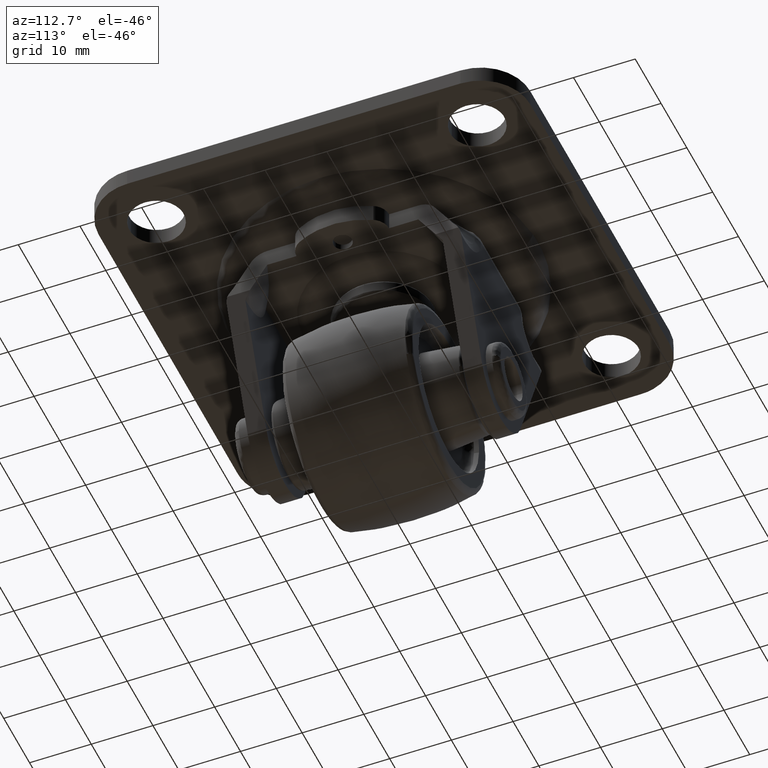
[diagram: clean part render]
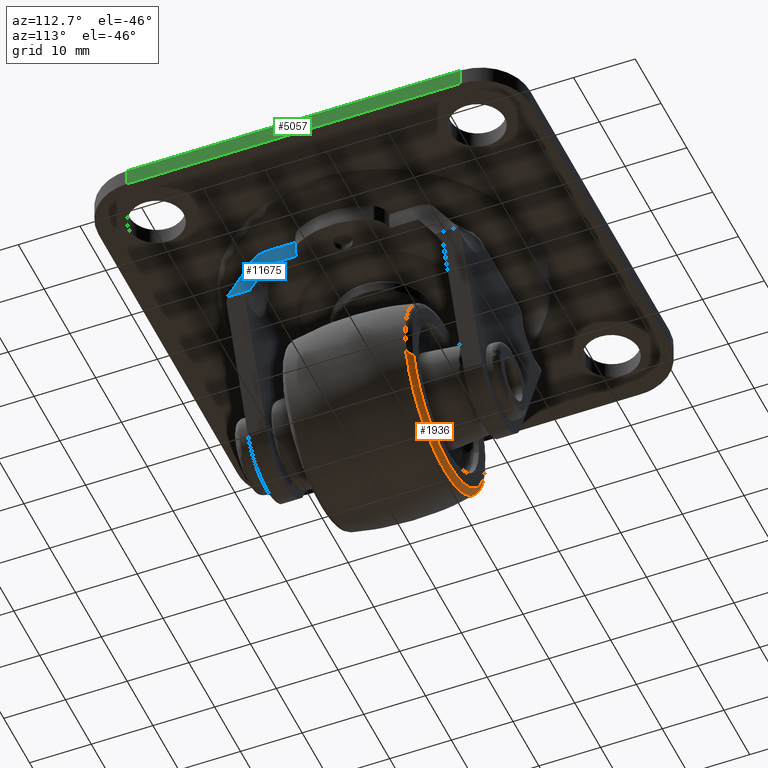
[diagram: same view with three faces highlighted in distinct colors, each labeled with its STEP entity id]
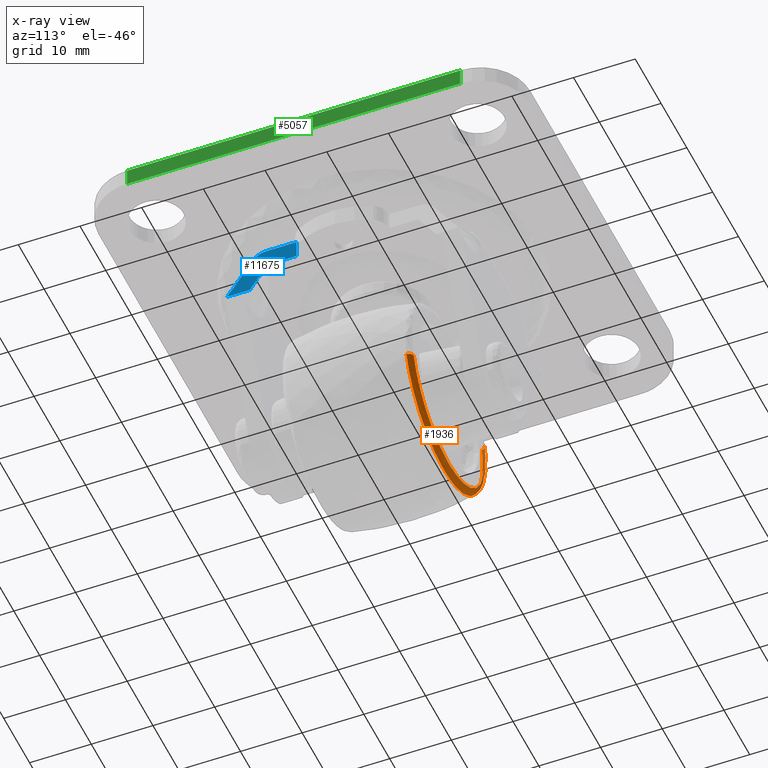
[diagram: x-ray of the same camera — body ghosted, the three highlighted faces saturated]
A machine part, auxiliary view with three faces highlighted in distinct colors.
The next image is the same camera in x-ray (body ghosted, the three faces saturated) — at least one of them is partly hidden behind the body in this view.
Their STEP definitions:

[orange] entity #1936 — the highlighted face is a freeform B-spline surface patch.
#1737=CARTESIAN_POINT('',(13.557302839998380,10.499997727166280,-3.764533742465678));
#1738=VERTEX_POINT('',#1737);
#1756=CARTESIAN_POINT('',(-13.750414091265590,10.499997727166280,2.982990616968395));
#1757=VERTEX_POINT('',#1756);
#1771=CARTESIAN_POINT('',(-14.709139005765300,9.693876889837995,3.190974999609361));
#1772=VERTEX_POINT('',#1771);
#1773=CARTESIAN_POINT('',(-13.750414091265595,10.499997727166283,2.982990616968394));
#1774=CARTESIAN_POINT('',(-14.553447576608715,10.499997788817412,3.157199520415097));
#1775=CARTESIAN_POINT('',(-14.709139005765302,9.693876889837995,3.190974999609360));
#1783=(BOUNDED_CURVE()B_SPLINE_CURVE(2,(#1773,#1774,#1775),.UNSPECIFIED.,.F.,.U.)B_SPLINE_CURVE_WITH_KNOTS((3,3),(-1.695300730183712,-0.298155514343116),.UNSPECIFIED.)CURVE()GEOMETRIC_REPRESENTATION_ITEM()RATIONAL_B_SPLINE_CURVE((0.892481596009499,0.690282653489372,0.894384571771421))REPRESENTATION_ITEM(''));
#1784=EDGE_CURVE('',#1757,#1772,#1783,.T.);
#1801=CARTESIAN_POINT('',(14.502563924880180,9.693872522452987,-4.027009509901783));
#1802=VERTEX_POINT('',#1801);
#1818=CARTESIAN_POINT('',(13.557302839998378,10.499997727166281,-3.764533742465678));
#1819=CARTESIAN_POINT('',(14.349062042185791,10.499997794003747,-3.984385810345354));
#1820=CARTESIAN_POINT('',(14.502563924880180,9.693872522452988,-4.027009509901783));
#1828=(BOUNDED_CURVE()B_SPLINE_CURVE(2,(#1818,#1819,#1820),.UNSPECIFIED.,.F.,.U.)B_SPLINE_CURVE_WITH_KNOTS((3,3),(-1.695300737120839,-0.298150679640712),.UNSPECIFIED.)CURVE()GEOMETRIC_REPRESENTATION_ITEM()RATIONAL_B_SPLINE_CURVE((0.872405939164935,0.674754613030236,0.874267487833418))REPRESENTATION_ITEM(''));
#1829=EDGE_CURVE('',#1738,#1802,#1828,.T.);
#1834=CARTESIAN_POINT('',(-13.689120327901433,10.498028916428241,2.969693637836777));
#1835=CARTESIAN_POINT('',(-16.658817965738194,10.498028916428240,-10.719426690064655));
#1836=CARTESIAN_POINT('',(-2.969697637836767,10.498028916428241,-13.689124327901421));
#1837=CARTESIAN_POINT('',(9.957670233032593,10.498028916428241,-16.493568507657788));
#1838=CARTESIAN_POINT('',(13.496869891193597,10.498028916428243,-3.747752998015889));
#1839=CARTESIAN_POINT('',(-14.598721045664639,10.556520861560248,3.167021080229865));
#1840=CARTESIAN_POINT('',(-17.765746125894498,10.556520861560250,-11.431699965434774));
#1841=CARTESIAN_POINT('',(-3.167025080229855,10.556520861560248,-14.598725045664628));
#1842=CARTESIAN_POINT('',(10.619327357395406,10.556520861560248,-17.589516074431728));
#1843=CARTESIAN_POINT('',(14.393696147849663,10.556520861560248,-3.996779604323338));
#1844=CARTESIAN_POINT('',(-14.719117706189248,9.632099230540236,3.193139754753795));
#1845=CARTESIAN_POINT('',(-17.912261460943022,9.632099230540238,-11.525977951435449));
#1846=CARTESIAN_POINT('',(-3.193143754753784,9.632099230540236,-14.719121706189236));
#1847=CARTESIAN_POINT('',(10.706905683390454,9.632099230540236,-17.734577995088653));
#1848=CARTESIAN_POINT('',(14.512401953884758,9.632099230540234,-4.029741288714839));
#1856=(BOUNDED_SURFACE()B_SPLINE_SURFACE(2,2,((#1834,#1839,#1844),(#1835,#1840,#1845),(#1836,#1841,#1846),(#1837,#1842,#1847),(#1838,#1843,#1848)),.UNSPECIFIED.,.F.,.F.,.U.)B_SPLINE_SURFACE_WITH_KNOTS((3,2,3),(3,3),(0.0,24.954699874211581,48.911211753454701),(0.0,1.575739697641357),.UNSPECIFIED.)GEOMETRIC_REPRESENTATION_ITEM()RATIONAL_B_SPLINE_SURFACE(((0.913695217595119,0.668973279630351,0.915789709842082),(0.646080084299226,0.473035542459226,0.647561113970197),(0.913695217595119,0.668973279630351,0.915789709842082),(0.656784689631062,0.480873051946071,0.658290257805072),(0.893142375357994,0.653925261415609,0.895189753679121)))REPRESENTATION_ITEM('')SURFACE());
#1857=CARTESIAN_POINT('',(0.0,10.499997727166280,-14.070261438793850));
#1858=VERTEX_POINT('',#1857);
#1859=CARTESIAN_POINT('',(0.0,10.499997727166280,-14.070261438793850));
#1860=CARTESIAN_POINT('',(10.695655583825443,10.499997727166278,-14.070261438793848));
#1861=CARTESIAN_POINT('',(13.557302839998371,10.499997727166281,-3.764533742465678));
#1869=(BOUNDED_CURVE()B_SPLINE_CURVE(2,(#1859,#1860,#1861),.UNSPECIFIED.,.F.,.U.)B_SPLINE_CURVE_WITH_KNOTS((3,3),(0.0,0.204398610791363),.UNSPECIFIED.)CURVE()GEOMETRIC_REPRESENTATION_ITEM()RATIONAL_B_SPLINE_CURVE((1.0,0.760532131857279,0.912639460334889))REPRESENTATION_ITEM(''));
#1870=EDGE_CURVE('',#1858,#1738,#1869,.T.);
#1871=ORIENTED_EDGE('',*,*,#1870,.T.);
#1872=ORIENTED_EDGE('',*,*,#1829,.T.);
#1873=CARTESIAN_POINT('',(0.0,9.693875231802339,-15.051287271490139));
#1874=VERTEX_POINT('',#1873);
#1875=CARTESIAN_POINT('',(0.0,9.693875231802339,-15.051287271490139));
#1876=CARTESIAN_POINT('',(11.441392369813409,9.693875231802339,-15.051287271490137));
#1877=CARTESIAN_POINT('',(14.502563924880178,9.693872522452988,-4.027009509901782));
#1885=(BOUNDED_CURVE()B_SPLINE_CURVE(2,(#1875,#1876,#1877),.UNSPECIFIED.,.F.,.U.)B_SPLINE_CURVE_WITH_KNOTS((3,3),(0.0,0.204398605127965),.UNSPECIFIED.)CURVE()GEOMETRIC_REPRESENTATION_ITEM()RATIONAL_B_SPLINE_CURVE((1.0,0.760532138492362,0.912639451905827))REPRESENTATION_ITEM(''));
#1886=EDGE_CURVE('',#1874,#1802,#1885,.T.);
#1887=ORIENTED_EDGE('',*,*,#1886,.F.);
#1888=CARTESIAN_POINT('',(-14.950616506431530,9.693877446149049,1.737862802311950));
#1889=VERTEX_POINT('',#1888);
#1890=CARTESIAN_POINT('',(-14.950616506431532,9.693877446149049,1.737862802311951));
#1891=CARTESIAN_POINT('',(-15.051282848002003,9.693877389038839,0.871844937167030));
#1892=CARTESIAN_POINT('',(-15.051282860592030,9.693877324905573,-0.000004047762983));
#1893=CARTESIAN_POINT('',(-15.051283077941774,9.693876217732218,-15.051287293988302));
#1894=CARTESIAN_POINT('',(0.0,9.693875231802339,-15.051287271490139));
#1902=(BOUNDED_CURVE()B_SPLINE_CURVE(2,(#1890,#1891,#1892,#1893,#1894),.UNSPECIFIED.,.F.,.U.)B_SPLINE_CURVE_WITH_KNOTS((3,2,3),(0.730000203322789,0.750000000000000,1.0),.UNSPECIFIED.)CURVE()GEOMETRIC_REPRESENTATION_ITEM()RATIONAL_B_SPLINE_CURVE((0.956886518379587,0.976568780702388,1.0,0.707106781186548,1.0))REPRESENTATION_ITEM(''));
#1903=EDGE_CURVE('',#1889,#1874,#1902,.T.);
#1904=ORIENTED_EDGE('',*,*,#1903,.F.);
#1905=CARTESIAN_POINT('',(-14.709139005765302,9.693876889837995,3.190974999609361));
#1906=CARTESIAN_POINT('',(-14.865473695791598,9.693877176754210,2.470334221446279));
#1907=CARTESIAN_POINT('',(-14.950616506431532,9.693877446149049,1.737862802311951));
#1915=(BOUNDED_CURVE()B_SPLINE_CURVE(2,(#1905,#1906,#1907),.UNSPECIFIED.,.F.,.U.)B_SPLINE_CURVE_WITH_KNOTS((3,3),(0.713703259680341,0.730000203322789),.UNSPECIFIED.)CURVE()GEOMETRIC_REPRESENTATION_ITEM()RATIONAL_B_SPLINE_CURVE((0.927299388110303,0.940848319341491,0.956886518379587))REPRESENTATION_ITEM(''));
#1916=EDGE_CURVE('',#1772,#1889,#1915,.T.);
#1917=ORIENTED_EDGE('',*,*,#1916,.F.);
#1918=ORIENTED_EDGE('',*,*,#1784,.F.);
#1919=CARTESIAN_POINT('',(-13.750414091265597,10.499997727166283,2.982990616968394));
#1920=CARTESIAN_POINT('',(-14.070257438793856,10.499997727166278,1.508640467757293));
#1921=CARTESIAN_POINT('',(-14.070257438793860,10.499997727166280,-0.000003999999988));
#1922=CARTESIAN_POINT('',(-14.070257438793858,10.499997727166280,-14.070261438793851));
#1923=CARTESIAN_POINT('',(0.0,10.499997727166280,-14.070261438793850));
#1931=(BOUNDED_CURVE()B_SPLINE_CURVE(2,(#1919,#1920,#1921,#1922,#1923),.UNSPECIFIED.,.F.,.U.)B_SPLINE_CURVE_WITH_KNOTS((3,2,3),(0.713703258524176,0.750000000000000,1.0),.UNSPECIFIED.)CURVE()GEOMETRIC_REPRESENTATION_ITEM()RATIONAL_B_SPLINE_CURVE((0.927299386187882,0.957475722226825,1.0,0.707106781186548,1.0))REPRESENTATION_ITEM(''));
#1932=EDGE_CURVE('',#1757,#1858,#1931,.T.);
#1933=ORIENTED_EDGE('',*,*,#1932,.T.);
#1934=EDGE_LOOP('',(#1871,#1872,#1887,#1904,#1917,#1918,#1933));
#1935=FACE_OUTER_BOUND('',#1934,.T.);
#1936=ADVANCED_FACE('',(#1935),#1856,.T.);

[blue] entity #11675 — the highlighted face is a freeform B-spline surface patch.
#8256=CARTESIAN_POINT('',(15.999995999999999,-7.485857864329890,22.500000000000000));
#8257=VERTEX_POINT('',#8256);
#8278=CARTESIAN_POINT('',(15.999995999999999,-7.485857864329890,25.500000000000000));
#8279=VERTEX_POINT('',#8278);
#8293=CARTESIAN_POINT('',(15.999995999999999,-7.485857864329890,25.500000000000000));
#8294=CARTESIAN_POINT('',(15.999995999999999,-7.485857864329890,22.500000000000000));
#8295=QUASI_UNIFORM_CURVE('',1,(#8293,#8294),.UNSPECIFIED.,.F.,.U.);
#8296=EDGE_CURVE('',#8279,#8257,#8295,.T.);
#9420=CARTESIAN_POINT('',(16.0,-18.385325102840500,18.795700436965351));
#9421=VERTEX_POINT('',#9420);
#9422=CARTESIAN_POINT('',(16.0,-18.739078620643149,18.200000999999901));
#9423=VERTEX_POINT('',#9422);
#9424=CARTESIAN_POINT('',(16.0,-18.385325102840479,18.795700436965340));
#9425=CARTESIAN_POINT('',(15.999999999999996,-18.596826165207091,18.518412210389858));
#9426=CARTESIAN_POINT('',(16.0,-18.739078620643170,18.200000999999911));
#9434=(BOUNDED_CURVE()B_SPLINE_CURVE(2,(#9424,#9425,#9426),.UNSPECIFIED.,.F.,.U.)CURVE()GEOMETRIC_REPRESENTATION_ITEM()QUASI_UNIFORM_CURVE()RATIONAL_B_SPLINE_CURVE((1.0,0.993310970517867,1.0))REPRESENTATION_ITEM(''));
#9435=EDGE_CURVE('',#9421,#9423,#9434,.T.);
#9864=CARTESIAN_POINT('',(16.0,-12.238953463919000,25.500000000000000));
#9865=VERTEX_POINT('',#9864);
#9882=CARTESIAN_POINT('',(16.0,-15.025085772157750,23.837753183212200));
#9883=VERTEX_POINT('',#9882);
#9897=CARTESIAN_POINT('',(16.0,-12.238953463919019,25.500000000000000));
#9898=CARTESIAN_POINT('',(16.0,-12.382342343990150,25.500000000000000));
#9899=CARTESIAN_POINT('',(16.0,-12.524105831087910,25.490424472670188));
#9900=CARTESIAN_POINT('',(16.0,-12.804516350614071,25.452913736784829));
#9901=CARTESIAN_POINT('',(16.0,-12.943163006308080,25.424976308808620));
#9902=CARTESIAN_POINT('',(16.0,-13.148760417193129,25.369092848939701));
#9903=CARTESIAN_POINT('',(16.0,-13.216896102032489,25.348127483517839));
#9904=CARTESIAN_POINT('',(16.0,-13.352350484612820,25.301383712125279));
#9905=CARTESIAN_POINT('',(16.0,-13.419073261586989,25.275804014799540));
#9906=CARTESIAN_POINT('',(16.0,-13.615493472942600,25.192881568646559));
#9907=CARTESIAN_POINT('',(16.0,-13.741812511716020,25.129263634783669));
#9908=CARTESIAN_POINT('',(16.0,-13.985251264632881,24.985456420963839));
#9909=CARTESIAN_POINT('',(16.0,-14.102373098315081,24.905270959070901));
#9910=CARTESIAN_POINT('',(16.0,-14.270788245522450,24.771901156285530));
#9911=CARTESIAN_POINT('',(16.0,-14.325338569561479,24.725531491564471));
#9912=CARTESIAN_POINT('',(16.0,-14.430433803374800,24.629761233977511));
#9913=CARTESIAN_POINT('',(16.0,-14.481120186562620,24.580249620953271));
#9914=CARTESIAN_POINT('',(16.0,-14.627641912158110,24.426875769631970));
#9915=CARTESIAN_POINT('',(16.0,-14.717967671872231,24.318198848859279));
#9916=CARTESIAN_POINT('',(16.0,-14.842114877940841,24.145272480939450));
#9917=CARTESIAN_POINT('',(16.0,-14.881600285212990,24.085972623423611));
#9918=CARTESIAN_POINT('',(16.0,-14.956635556061141,23.963933738073660));
#9919=CARTESIAN_POINT('',(16.0,-14.992028580475990,23.901432080516631));
#9920=CARTESIAN_POINT('',(16.0,-15.025085772157800,23.837753183212200));
#9921=B_SPLINE_CURVE_WITH_KNOTS('',3,(#9897,#9898,#9899,#9900,#9901,#9902,#9903,#9904,#9905,#9906,#9907,#9908,#9909,#9910,#9911,#9912,#9913,#9914,#9915,#9916,#9917,#9918,#9919,#9920),.UNSPECIFIED.,.F.,.U.,(4,2,2,2,2,2,2,2,2,2,2,4),(0.0,0.124999999999998,0.249999999999996,0.312499999999995,0.374999999999994,0.499999999999993,0.624999999999992,0.687499999999992,0.749999999999992,0.874999999999995,0.937499999999998,1.0),.UNSPECIFIED.);
#9922=EDGE_CURVE('',#9865,#9883,#9921,.T.);
#10722=CARTESIAN_POINT('',(16.0,-12.238953463919000,22.500000000000000));
#10723=VERTEX_POINT('',#10722);
#10737=CARTESIAN_POINT('',(16.0,-15.057909817492151,18.200000999999901));
#10738=VERTEX_POINT('',#10737);
#10739=CARTESIAN_POINT('',(16.0,-15.057909817492151,18.200000999999901));
#10740=CARTESIAN_POINT('',(16.0,-14.539011363621750,18.884037780579781));
#10741=CARTESIAN_POINT('',(16.0,-14.043538153451919,19.583650714110991));
#10742=CARTESIAN_POINT('',(16.0,-13.102454521778510,21.016031857283831));
#10743=CARTESIAN_POINT('',(16.0,-12.656818164533970,21.748782821466939));
#10744=CARTESIAN_POINT('',(16.0,-12.238953463919000,22.500000000000000));
#10745=B_SPLINE_CURVE_WITH_KNOTS('',3,(#10739,#10740,#10741,#10742,#10743,#10744),.UNSPECIFIED.,.F.,.U.,(4,2,4),(0.0,0.500000000000000,1.0),.UNSPECIFIED.);
#10746=EDGE_CURVE('',#10738,#10723,#10745,.T.);
#11190=CARTESIAN_POINT('',(16.0,-17.724026998837800,19.653937310199751));
#11191=VERTEX_POINT('',#11190);
#11206=CARTESIAN_POINT('',(16.0,-17.724026998837790,19.653937310199751));
#11207=CARTESIAN_POINT('',(15.999999999999998,-18.056779561727094,19.226439693899646));
#11208=CARTESIAN_POINT('',(16.0,-18.385325102840479,18.795700436965319));
#11216=(BOUNDED_CURVE()B_SPLINE_CURVE(2,(#11206,#11207,#11208),.UNSPECIFIED.,.F.,.U.)CURVE()GEOMETRIC_REPRESENTATION_ITEM()QUASI_UNIFORM_CURVE()RATIONAL_B_SPLINE_CURVE((1.0,0.999987985730817,1.0))REPRESENTATION_ITEM(''));
#11217=EDGE_CURVE('',#11191,#9421,#11216,.T.);
#11245=CARTESIAN_POINT('',(16.0,-17.724026998837800,19.653937310199751));
#11246=CARTESIAN_POINT('',(16.0,-17.210701199542370,20.313423006353961));
#11247=CARTESIAN_POINT('',(16.0,-16.727976104443751,20.991132073660680));
#11248=CARTESIAN_POINT('',(16.0,-15.826558020319981,22.384682691342149));
#11249=CARTESIAN_POINT('',(16.0,-15.407814138327280,23.100493933870691));
#11250=CARTESIAN_POINT('',(16.0,-15.025085772157750,23.837753183212200));
#11251=B_SPLINE_CURVE_WITH_KNOTS('',3,(#11245,#11246,#11247,#11248,#11249,#11250),.UNSPECIFIED.,.F.,.U.,(4,2,4),(0.0,0.500000000000000,1.0),.UNSPECIFIED.);
#11252=EDGE_CURVE('',#11191,#9883,#11251,.T.);
#11472=CARTESIAN_POINT('',(16.0,-15.057909817492151,18.200000999999901));
#11473=CARTESIAN_POINT('',(16.0,-18.739078620643149,18.200000999999901));
#11474=QUASI_UNIFORM_CURVE('',1,(#11472,#11473),.UNSPECIFIED.,.F.,.U.);
#11475=EDGE_CURVE('',#10738,#9423,#11474,.T.);
#11528=CARTESIAN_POINT('',(15.999995999999999,-7.485857864329890,25.500000000000000));
#11529=CARTESIAN_POINT('',(16.0,-12.238953463919000,25.500000000000000));
#11530=QUASI_UNIFORM_CURVE('',1,(#11528,#11529),.UNSPECIFIED.,.F.,.U.);
#11531=EDGE_CURVE('',#8279,#9865,#11530,.T.);
#11655=CARTESIAN_POINT('',(16.0,-19.301176869972888,25.864634935901190));
#11656=CARTESIAN_POINT('',(16.0,-19.301176869972888,17.835365868297480));
#11657=CARTESIAN_POINT('',(16.0,-6.923759212553617,25.864634935901190));
#11658=CARTESIAN_POINT('',(16.0,-6.923759212553617,17.835365868297480));
#11659=B_SPLINE_SURFACE_WITH_KNOTS('',1,1,((#11655,#11657),(#11656,#11658)),.UNSPECIFIED.,.F.,.F.,.U.,(2,2),(2,2),(0.0,8.029269067603718),(0.0,12.377417657419270),.UNSPECIFIED.);
#11660=ORIENTED_EDGE('',*,*,#8296,.F.);
#11661=ORIENTED_EDGE('',*,*,#11531,.T.);
#11662=ORIENTED_EDGE('',*,*,#9922,.T.);
#11663=ORIENTED_EDGE('',*,*,#11252,.F.);
#11664=ORIENTED_EDGE('',*,*,#11217,.T.);
#11665=ORIENTED_EDGE('',*,*,#9435,.T.);
#11666=ORIENTED_EDGE('',*,*,#11475,.F.);
#11667=ORIENTED_EDGE('',*,*,#10746,.T.);
#11668=CARTESIAN_POINT('',(15.999995999999999,-7.485857864329890,22.500000000000000));
#11669=CARTESIAN_POINT('',(16.0,-12.238953463919000,22.500000000000000));
#11670=QUASI_UNIFORM_CURVE('',1,(#11668,#11669),.UNSPECIFIED.,.F.,.U.);
#11671=EDGE_CURVE('',#8257,#10723,#11670,.T.);
#11672=ORIENTED_EDGE('',*,*,#11671,.F.);
#11673=EDGE_LOOP('',(#11660,#11661,#11662,#11663,#11664,#11665,#11666,#11667,#11672));
#11674=FACE_OUTER_BOUND('',#11673,.T.);
#11675=ADVANCED_FACE('',(#11674),#11659,.T.);

[green] entity #5057 — the highlighted face is a freeform B-spline surface patch.
#4979=CARTESIAN_POINT('',(34.999997999999998,26.999996000000149,27.699999999999999));
#4980=VERTEX_POINT('',#4979);
#5005=CARTESIAN_POINT('',(34.999997999999998,26.999996000000149,30.500000000000000));
#5006=VERTEX_POINT('',#5005);
#5022=CARTESIAN_POINT('',(34.999997999999998,26.999996000000149,30.500000000000000));
#5023=CARTESIAN_POINT('',(34.999997999999998,26.999996000000149,27.699999999999999));
#5024=QUASI_UNIFORM_CURVE('',1,(#5022,#5023),.UNSPECIFIED.,.F.,.U.);
#5025=EDGE_CURVE('',#5006,#4980,#5024,.T.);
#5030=CARTESIAN_POINT('',(34.999997999999998,-29.697300055850238,27.560140793958841));
#5031=CARTESIAN_POINT('',(34.999997999999998,-29.697300055850238,30.639860032161540));
#5032=CARTESIAN_POINT('',(34.999997999999998,29.697297161071852,27.560140793958841));
#5033=CARTESIAN_POINT('',(34.999997999999998,29.697297161071852,30.639860032161540));
#5034=B_SPLINE_SURFACE_WITH_KNOTS('',1,1,((#5030,#5032),(#5031,#5033)),.UNSPECIFIED.,.F.,.F.,.U.,(2,2),(2,2),(0.0,3.079719238202699),(0.0,59.394597216922087),.UNSPECIFIED.);
#5035=CARTESIAN_POINT('',(34.999997999999998,-26.999999860373698,27.699999999999999));
#5036=VERTEX_POINT('',#5035);
#5037=CARTESIAN_POINT('',(34.999997999999998,-26.999999860373698,27.699999999999999));
#5038=CARTESIAN_POINT('',(34.999997999999998,26.999996000000149,27.699999999999999));
#5039=QUASI_UNIFORM_CURVE('',1,(#5037,#5038),.UNSPECIFIED.,.F.,.U.);
#5040=EDGE_CURVE('',#5036,#4980,#5039,.T.);
#5041=ORIENTED_EDGE('',*,*,#5040,.T.);
#5042=ORIENTED_EDGE('',*,*,#5025,.F.);
#5043=CARTESIAN_POINT('',(34.999997999999998,-26.999999860373698,30.500000000000000));
#5044=VERTEX_POINT('',#5043);
#5045=CARTESIAN_POINT('',(34.999997999999998,-26.999999860373698,30.500000000000000));
#5046=CARTESIAN_POINT('',(34.999997999999998,26.999996000000149,30.500000000000000));
#5047=QUASI_UNIFORM_CURVE('',1,(#5045,#5046),.UNSPECIFIED.,.F.,.U.);
#5048=EDGE_CURVE('',#5044,#5006,#5047,.T.);
#5049=ORIENTED_EDGE('',*,*,#5048,.F.);
#5050=CARTESIAN_POINT('',(34.999997999999998,-26.999999860373698,30.500000000000000));
#5051=CARTESIAN_POINT('',(34.999997999999998,-26.999999860373698,27.699999999999999));
#5052=QUASI_UNIFORM_CURVE('',1,(#5050,#5051),.UNSPECIFIED.,.F.,.U.);
#5053=EDGE_CURVE('',#5044,#5036,#5052,.T.);
#5054=ORIENTED_EDGE('',*,*,#5053,.T.);
#5055=EDGE_LOOP('',(#5041,#5042,#5049,#5054));
#5056=FACE_OUTER_BOUND('',#5055,.T.);
#5057=ADVANCED_FACE('',(#5056),#5034,.F.);